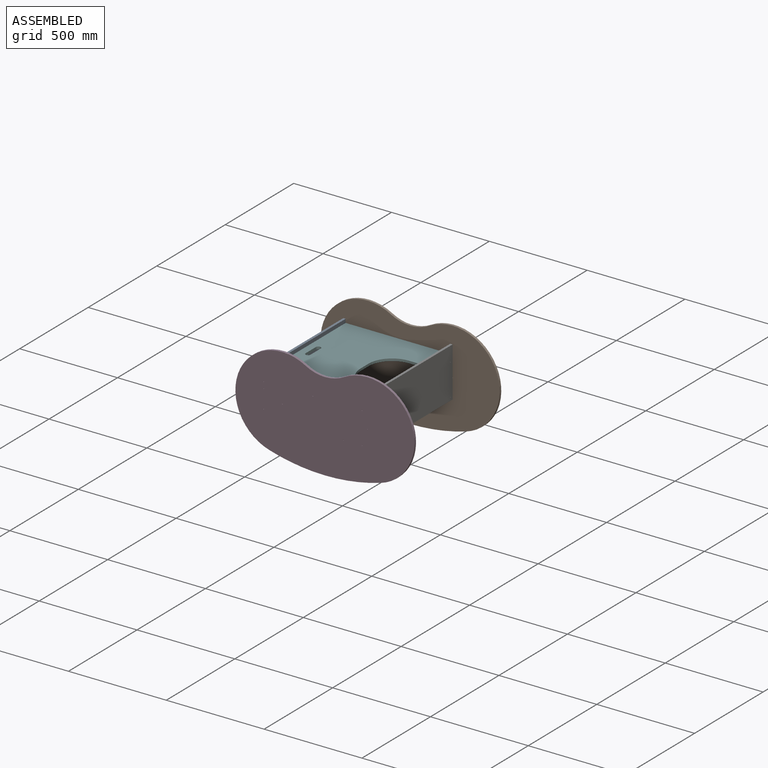
[diagram: assembled view]
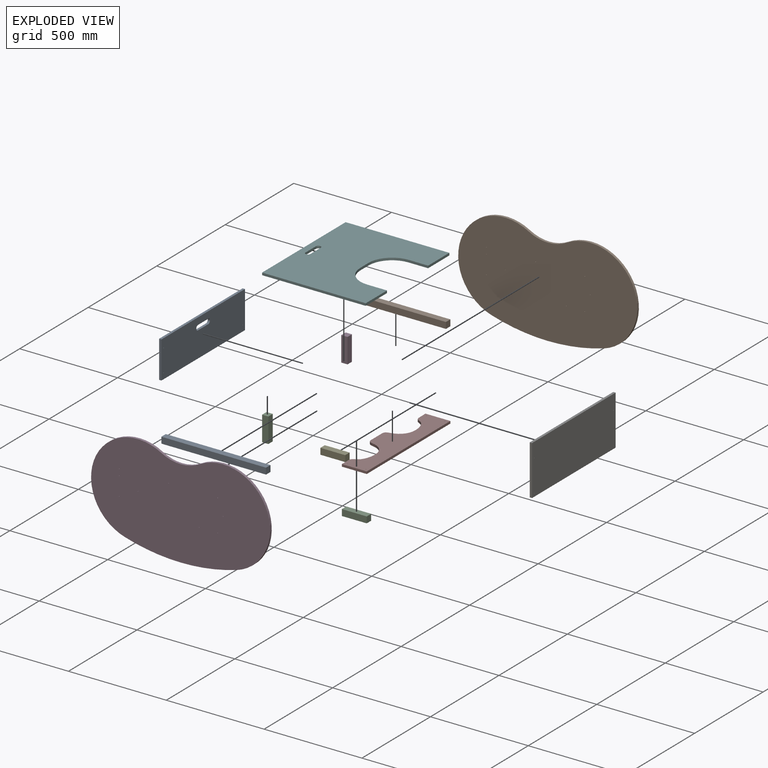
[diagram: exploded view]
GUIDED TOUR — MATED ASSEMBLY (Onshape document 1c4da140332665b09f8e28de, AutoMate assembly 1c4da140332665b09f8e28de_31da0ef248eccbd17ac45f32_f34d7055b889e189b3b1da10_default)

This assembly has 12 components, labeled P0..P11 below (a component is one placed occurrence of a part; the same part can appear more than once), held together by 11 mates. A mate is a constraint between two components; its type names the relative motion it leaves free:
  FASTENED — locks the two components together rigidly (no relative motion).
Axis/direction vectors are unit vectors and 'through' points are millimeter coordinates, both in the assembly's world frame.

MATES
  1. FASTENED "Fastened 5": P7 <-> P4, direction (0.000, 0.000, -1.000) through (205.50, -6.00, -68.00) mm
  2. FASTENED "Fastened 4": P8 <-> P11, direction (1.000, 0.000, 0.000) through (-329.50, -6.00, -64.00) mm
  3. FASTENED "Fastened 8": P0 <-> P5, direction (0.000, 0.000, 1.000) through (-329.50, -616.00, 95.00) mm
  4. FASTENED "Fastened 9": P10 <-> P7, direction (0.000, 0.000, 1.000) through (205.50, -616.00, -68.00) mm
  5. FASTENED "Fastened 3": P11 <-> P1, direction (1.000, 0.000, 0.000) through (-329.50, -6.00, 63.00) mm
  6. FASTENED "Fastened 7": P5 <-> P1, direction (0.000, 0.000, -1.000) through (-329.50, -6.00, 95.00) mm
  7. FASTENED "Fastened 6": P6 <-> P4, direction (-1.000, 0.000, 0.000) through (205.50, -6.00, -100.00) mm
  8. FASTENED "Fastened 2": P9 <-> P1, direction (0.000, -1.000, 0.000) through (205.50, -6.00, 63.00) mm
  9. FASTENED "Fastened 11": P10 <-> P3, direction (0.000, -1.000, 0.000) through (205.50, -616.00, -100.00) mm
  10. FASTENED "Fastened 1": P4 <-> P9, direction (0.000, 1.000, 0.000) through (205.50, -6.00, -100.00) mm
  11. FASTENED "Fastened 10": P0 <-> P2, direction (0.000, 0.000, -1.000) through (-329.50, -616.00, 63.00) mm

ASSEMBLY ORDER
  1. P11 — the base component [order verified]
  2. P2 [order verified]
  3. P1 [order verified]
  4. P0 [order verified]
  5. P7 [order verified]
  6. P10 [order verified]
  7. P4 [order verified]
  8. P5 [order verified]
  9. P6 [order verified]
  10. P8 [order verified]
  11. P9 [order verified]
  12. P3 [order verified]
Order-tag legend:
  [order verified] — this step's position reverses a verified removal order: the component was checked to insert without passing through the ones already placed.

Of the 12 components, 12 carry the full construction recipe — the FeatureScript program that regenerates the part's solid from scratch; the rest are supplied as boundary geometry only.
Each toured component is shown spotlighted twice — in the assembled view, then in the exploded view, where a leader line traces a displaced component back to its assembled socket (saturated green if recipe-attached, orange if geometry-only; every other component desaturated gray) — followed by its recipe or geometry summary and the mates that hold it.
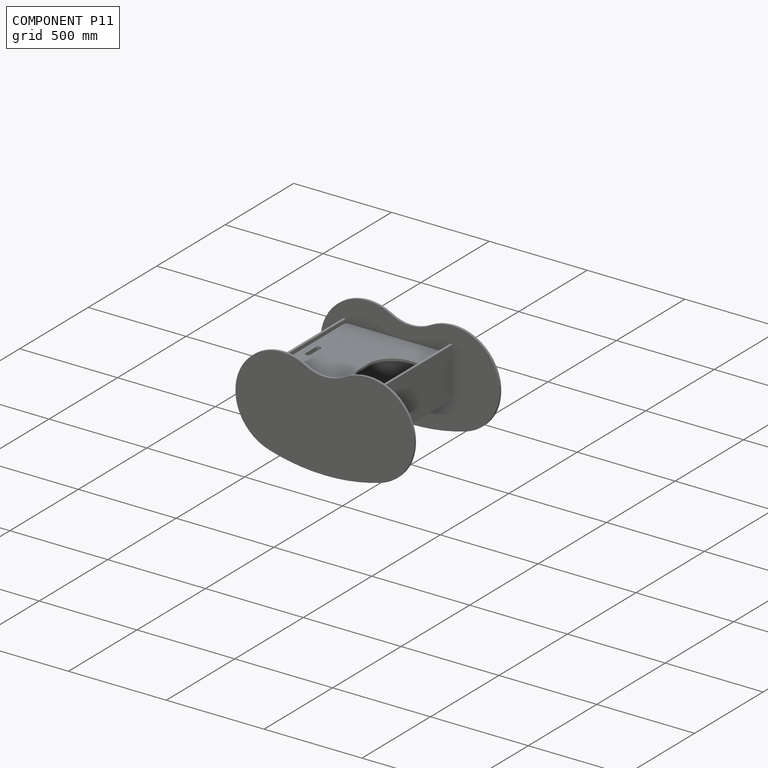
[diagram: component P11 — assembled]
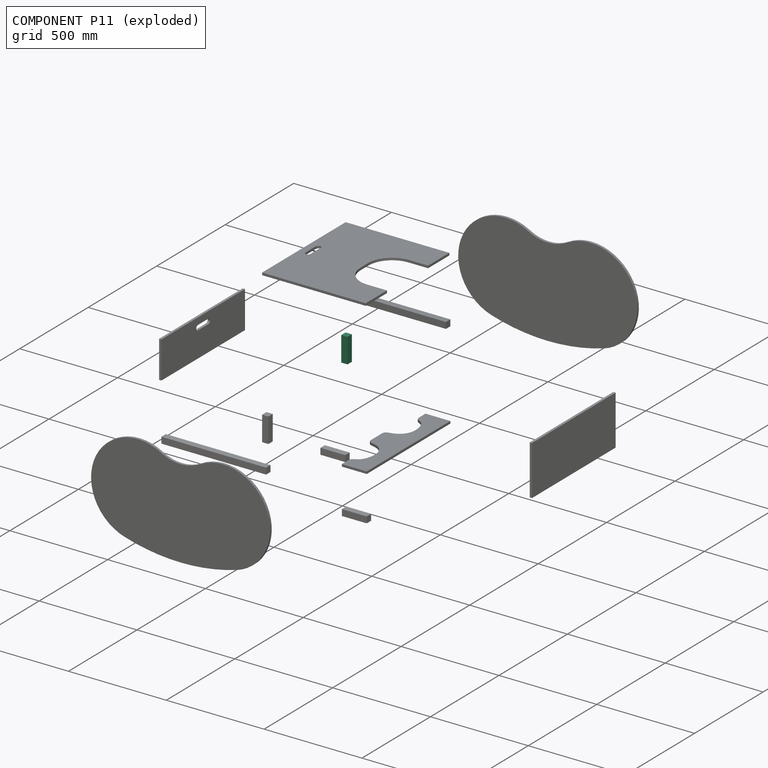
[diagram: component P11 — exploded]
COMPONENT P11 — same part as P2 (CADFS 00739949); its construction recipe is shown at P2.
Held by: FASTENED mate "Fastened 4" to P8; FASTENED mate "Fastened 3" to P1.
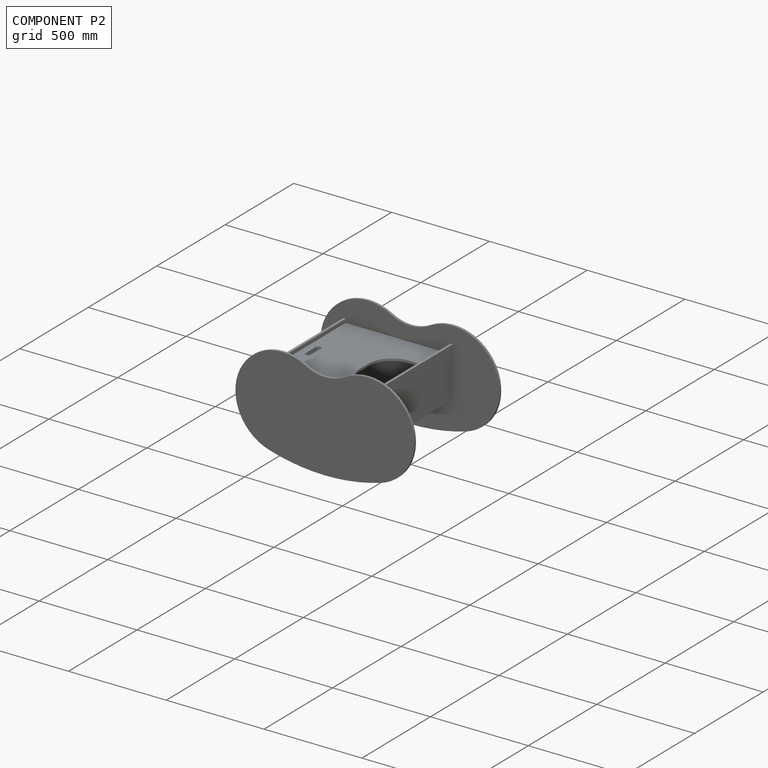
[diagram: component P2 — assembled]
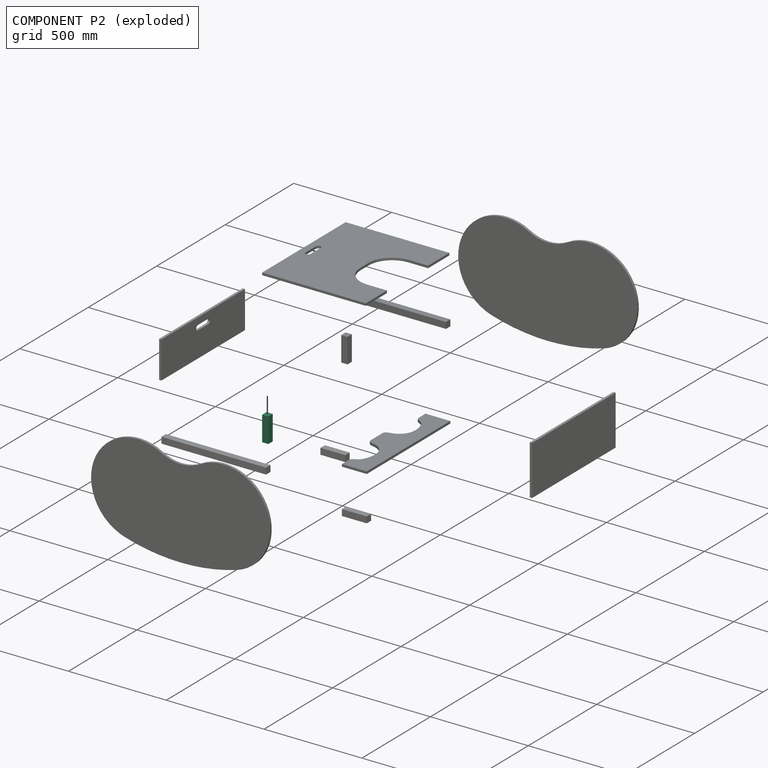
[diagram: component P2 — exploded]
COMPONENT P2 — recipe-attached (CADFS 00739949, mesh-verified: the recipe's output STEP matches this component's geometry to below the mesh-comparison resolution (tessellation chordal tolerance ~0.202 mm)).
Held by: FASTENED mate "Fastened 10" to P0.
Construction recipe (FeatureScript — the CAD program that rebuilds this solid; sketch coordinates are in the units given by the * unit suffixes, e.g. mm):

FeatureScript 1540;
import(path : "onshape/std/geometry.fs", version : "1540.0");
import(path : "onshape/std/common.fs", version : "1540.0");
const mm = millimeter;
const VERTEX = EntityType.VERTEX;
const EDGE = EntityType.EDGE;
const FACE = EntityType.FACE;
const BODY = EntityType.BODY;
function v(x, y){return vector(x, y);}
function OD(order){return orderDisambiguation(order);}
function OSD(set){return originalSetDisambiguation(set);}
function TD(topology){return topologyDisambiguation(topology);}
function TDD(query){return trueDependencyDisambiguation(query);}
function sQuery(a, b, c) {return sketchEntityQuery(a, b, c);}

annotation { "Feature Type Name" : "Feature", "Feature Type Description" : "" }
export const myFeature = defineFeature(function(context is Context, id is Id, definition is map)
    precondition{}
    {
        {
            var Q0;
            Q0=qCreatedBy(makeId("Front.planeOp"),FACE);
            var sketch = newSketch(context, id + "F0", { "sketchPlane" : qUnion([Q0])});
            skLineSegment(sketch, "E0.bottom", {"start": v(16, -16) * mm, "end": v(-16, -16) * mm});
            skLineSegment(sketch, "E0.top", {"start": v(16, 16) * mm, "end": v(-16, 16) * mm});
            skLineSegment(sketch, "E0.left", {"start": v(16, -16) * mm, "end": v(16, 16) * mm});
            skLineSegment(sketch, "E0.right", {"start": v(-16, -16) * mm, "end": v(-16, 16) * mm});
            skPoint(sketch, "E0.middle", {"position": v(0, 0) * mm});
            skSolve(sketch);
        }
        {
            var Q0;
            Q0=makeQuery(id+"F0.imprint","IMPRINT",FACE,{"disambiguationData":[TD([[makeQuery(id+"F0.imprint","IMPRINT",EDGE,{"derivedFrom":sQuery(id+"F0.wireOp",EDGE,"E0.bottom")}),-1.0]])]});
            extrude(context, id + "F1", {"entities" : qUnion([Q0]), "oppositeDirection" : true, "depth" : 127 * mm, "offsetDistance" : 25 * mm, "symmetric" : true});
        }
    });
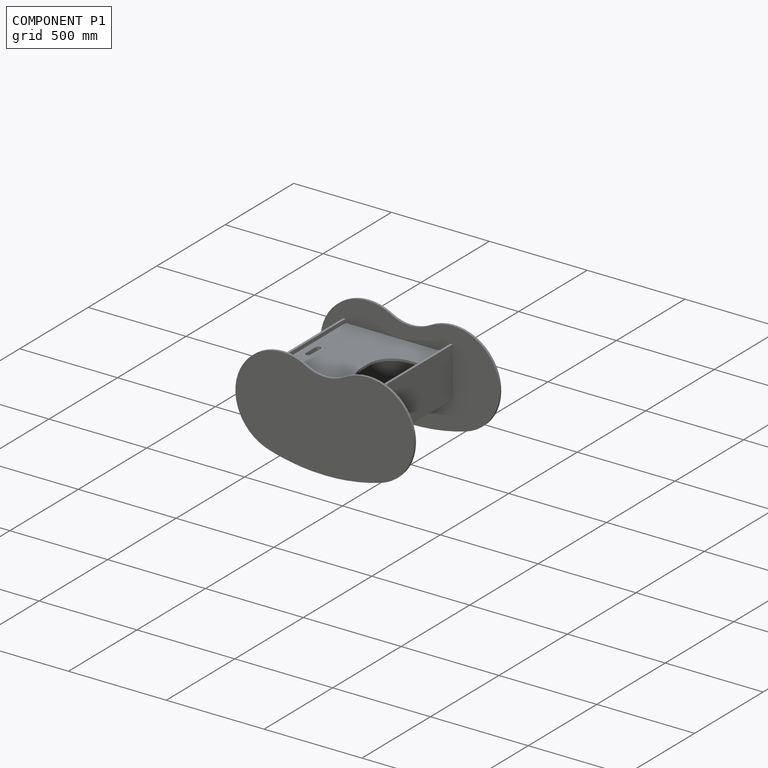
[diagram: component P1 — assembled]
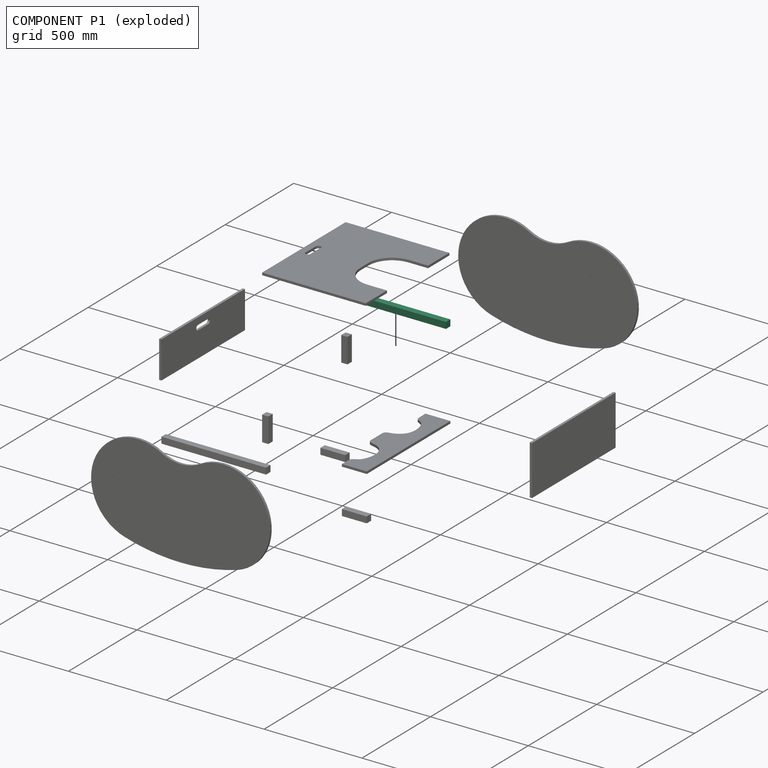
[diagram: component P1 — exploded]
COMPONENT P1 — same part as P0 (CADFS 00739947); its construction recipe is shown at P0.
Held by: FASTENED mate "Fastened 3" to P11; FASTENED mate "Fastened 7" to P5; FASTENED mate "Fastened 2" to P9.
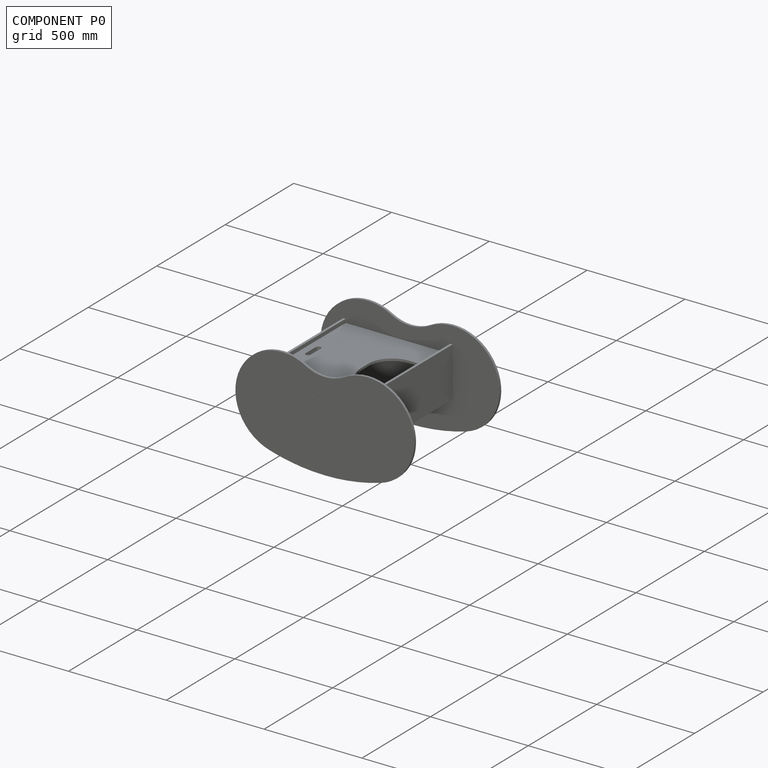
[diagram: component P0 — assembled]
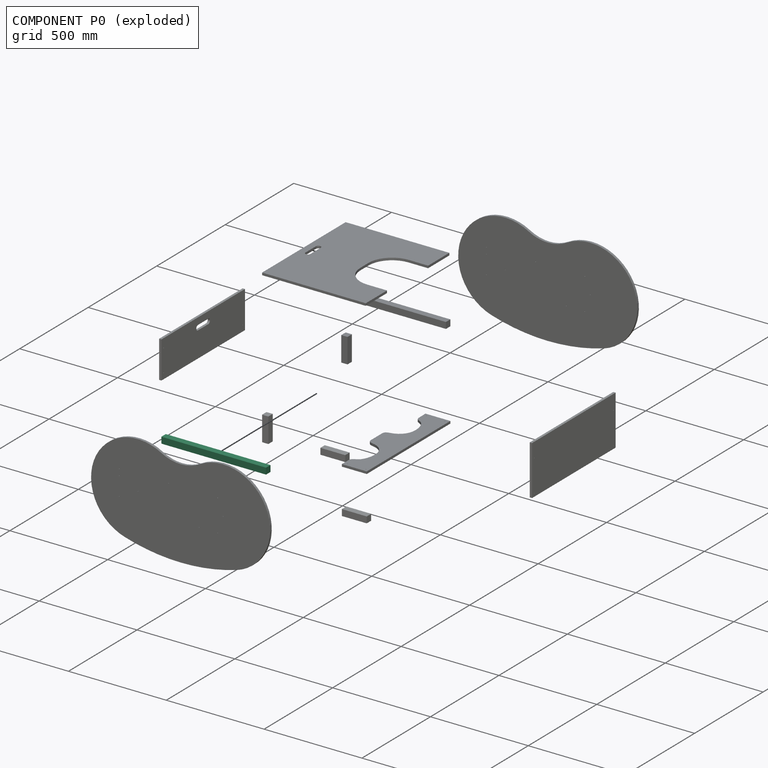
[diagram: component P0 — exploded]
COMPONENT P0 — recipe-attached (CADFS 00739947, mesh-verified: the recipe's output STEP matches this component's geometry to below the mesh-comparison resolution (tessellation chordal tolerance ~0.805 mm)).
Held by: FASTENED mate "Fastened 8" to P5; FASTENED mate "Fastened 10" to P2.
Construction recipe (FeatureScript — the CAD program that rebuilds this solid; sketch coordinates are in the units given by the * unit suffixes, e.g. mm):

FeatureScript 1540;
import(path : "onshape/std/geometry.fs", version : "1540.0");
import(path : "onshape/std/common.fs", version : "1540.0");
const mm = millimeter;
const VERTEX = EntityType.VERTEX;
const EDGE = EntityType.EDGE;
const FACE = EntityType.FACE;
const BODY = EntityType.BODY;
function v(x, y){return vector(x, y);}
function OD(order){return orderDisambiguation(order);}
function OSD(set){return originalSetDisambiguation(set);}
function TD(topology){return topologyDisambiguation(topology);}
function TDD(query){return trueDependencyDisambiguation(query);}
function sQuery(a, b, c) {return sketchEntityQuery(a, b, c);}

annotation { "Feature Type Name" : "Feature", "Feature Type Description" : "" }
export const myFeature = defineFeature(function(context is Context, id is Id, definition is map)
    precondition{}
    {
        {
            var Q0;
            Q0=qCreatedBy(makeId("Front.planeOp"),FACE);
            var sketch = newSketch(context, id + "F0", { "sketchPlane" : qUnion([Q0])});
            skLineSegment(sketch, "E0.bottom", {"start": v(16, -16) * mm, "end": v(-16, -16) * mm});
            skLineSegment(sketch, "E0.top", {"start": v(16, 16) * mm, "end": v(-16, 16) * mm});
            skLineSegment(sketch, "E0.left", {"start": v(16, -16) * mm, "end": v(16, 16) * mm});
            skLineSegment(sketch, "E0.right", {"start": v(-16, -16) * mm, "end": v(-16, 16) * mm});
            skPoint(sketch, "E0.middle", {"position": v(0, 0) * mm});
            skSolve(sketch);
        }
        {
            var Q0;
            Q0=makeQuery(id+"F0.imprint","IMPRINT",FACE,{"disambiguationData":[TD([[makeQuery(id+"F0.imprint","IMPRINT",EDGE,{"derivedFrom":sQuery(id+"F0.wireOp",EDGE,"E0.bottom")}),-1.0]])]});
            extrude(context, id + "F1", {"entities" : qUnion([Q0]), "oppositeDirection" : true, "depth" : 535 * mm, "offsetDistance" : 25 * mm, "symmetric" : true});
        }
    });
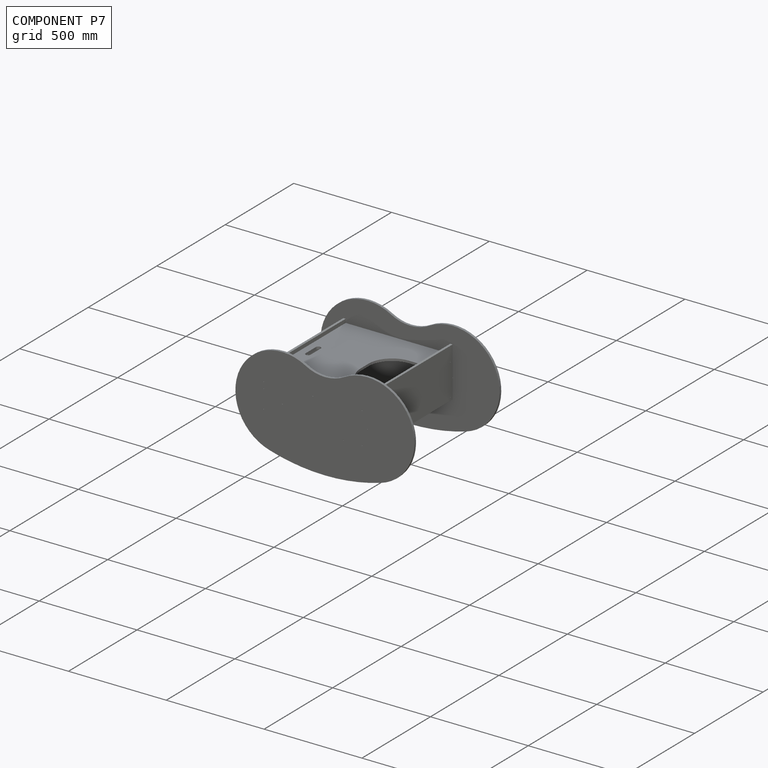
[diagram: component P7 — assembled]
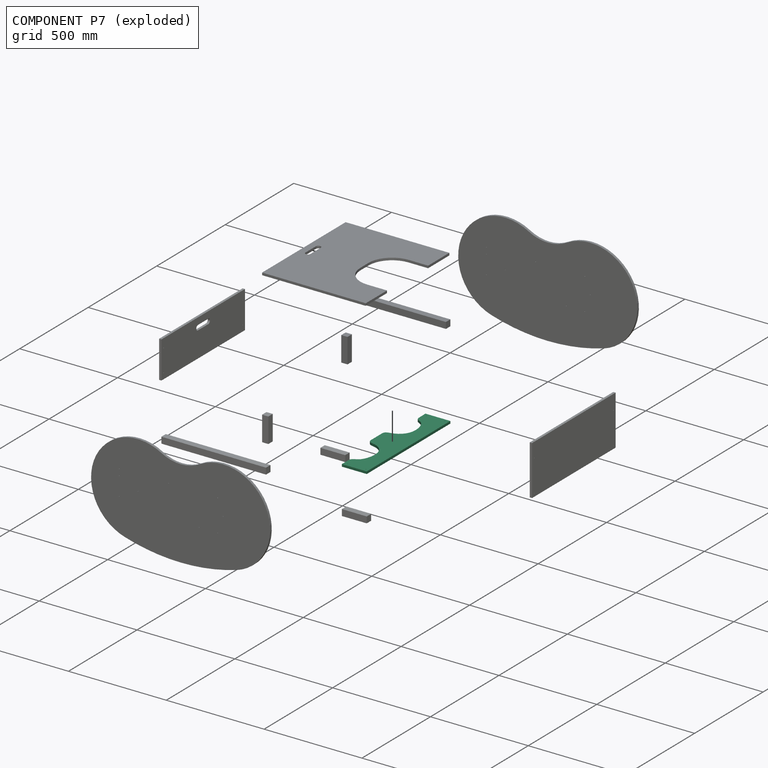
[diagram: component P7 — exploded]
COMPONENT P7 — recipe-attached (CADFS 00739952, mesh-verified: the recipe's output STEP matches this component's geometry to below the mesh-comparison resolution (tessellation chordal tolerance ~0.948 mm)).
Held by: FASTENED mate "Fastened 5" to P4; FASTENED mate "Fastened 9" to P10.
Construction recipe (FeatureScript — the CAD program that rebuilds this solid; sketch coordinates are in the units given by the * unit suffixes, e.g. mm):

FeatureScript 1540;
import(path : "onshape/std/geometry.fs", version : "1540.0");
import(path : "onshape/std/common.fs", version : "1540.0");
const mm = millimeter;
const VERTEX = EntityType.VERTEX;
const EDGE = EntityType.EDGE;
const FACE = EntityType.FACE;
const BODY = EntityType.BODY;
function v(x, y){return vector(x, y);}
function OD(order){return orderDisambiguation(order);}
function OSD(set){return originalSetDisambiguation(set);}
function TD(topology){return topologyDisambiguation(topology);}
function TDD(query){return trueDependencyDisambiguation(query);}
function sQuery(a, b, c) {return sketchEntityQuery(a, b, c);}

annotation { "Feature Type Name" : "Feature", "Feature Type Description" : "" }
export const myFeature = defineFeature(function(context is Context, id is Id, definition is map)
    precondition{}
    {
        {
            var Q0;
            Q0=qCreatedBy(makeId("Top.planeOp"),FACE);
            var sketch = newSketch(context, id + "F0", { "sketchPlane" : qUnion([Q0])});
            skLineSegment(sketch, "E0.bottom", {"start": v(-305, 0) * mm, "end": v(305, 0) * mm});
            skLineSegment(sketch, "E0.top", {"start": v(-40, 164) * mm, "end": v(40, 164) * mm});
            skLineSegment(sketch, "E0.left", {"start": v(-305, 0) * mm, "end": v(-305, 127) * mm});
            skLineSegment(sketch, "E0.right", {"start": v(305, 0) * mm, "end": v(305, 127) * mm});
            skFitSpline(sketch, "E1", {"points": [v(-40, 164) * mm, v(-67.52, 124) * mm, v(-123.52, 70) * mm, v(-220.2, 90.1) * mm, v(-240.73, 121.15) * mm, v(-305, 127) * mm], "startDerivative": vector(-394.76, 0) * mm, "endDerivative": vector(-576.23, 21.18) * mm});
            skFitSpline(sketch, "E2.MirrorCS", {"points": [v(40, 164) * mm, v(67.52, 124) * mm, v(123.52, 70) * mm, v(220.2, 90.1) * mm, v(240.73, 121.15) * mm, v(305, 127) * mm], "startDerivative": vector(394.76, 0) * mm, "endDerivative": vector(576.23, 21.18) * mm});
            skLineSegment(sketch, "E3", {"start": v(-289, 126.67) * mm, "end": v(-289, 0) * mm, "construction": true});
            skCircle(sketch, "E4", {"center": v(-289, 16) * mm, "radius": 1.5 * mm});
            skCircle(sketch, "E5", {"center": v(-289, 111) * mm, "radius": 1.5 * mm});
            skCircle(sketch, "E6.MirrorC", {"center": v(289, 16) * mm, "radius": 1.5 * mm});
            skCircle(sketch, "E7.MirrorC", {"center": v(289, 111) * mm, "radius": 1.5 * mm});
            skLineSegment(sketch, "E8.MirrorCS", {"start": v(289, 126.67) * mm, "end": v(289, 0) * mm, "construction": true});
            skSolve(sketch);
        }
        {
            var Q0;
            Q0=makeQuery(id+"F0.imprint","IMPRINT",FACE,{"disambiguationData":[TD([[makeQuery(id+"F0.imprint","IMPRINT",EDGE,{"derivedFrom":sQuery(id+"F0.wireOp",EDGE,"E0.bottom")}),1.0]])]});
            extrude(context, id + "F1", {"entities" : qUnion([Q0]), "depth" : 12 * mm, "offsetDistance" : 25 * mm});
        }
    });
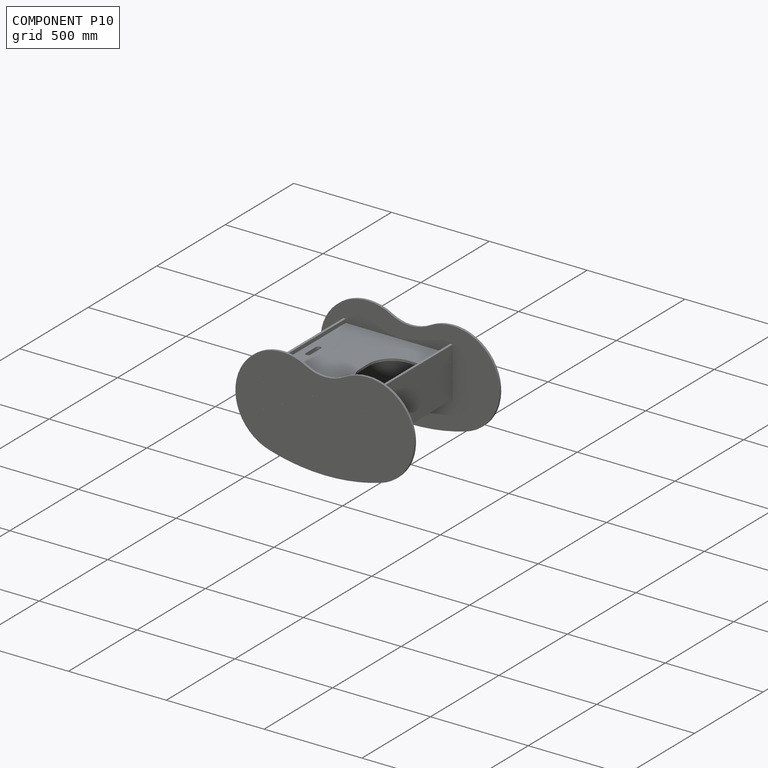
[diagram: component P10 — assembled]
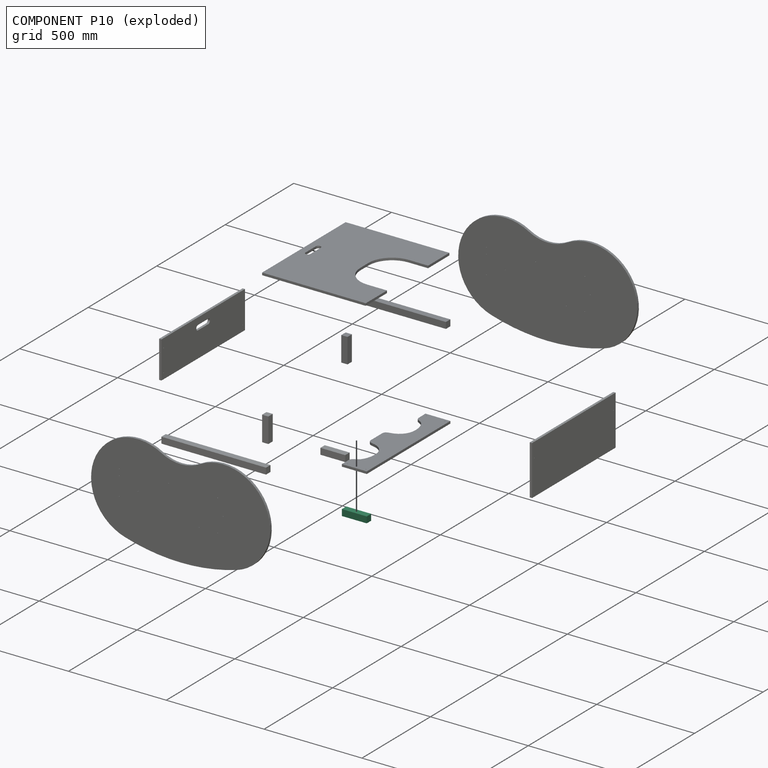
[diagram: component P10 — exploded]
COMPONENT P10 — same part as P2 (CADFS 00739949); its construction recipe is shown at P2.
Held by: FASTENED mate "Fastened 9" to P7; FASTENED mate "Fastened 11" to P3.
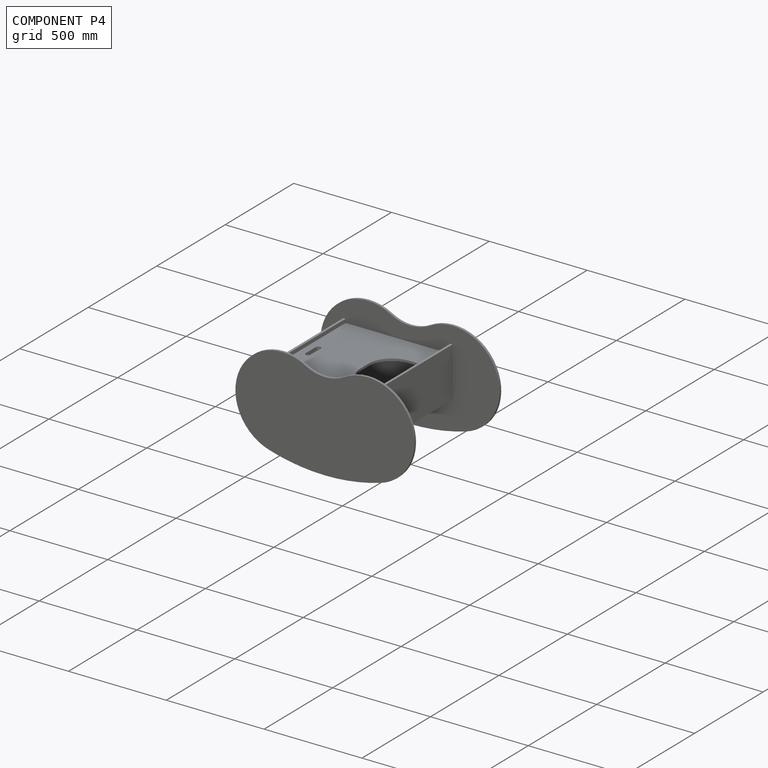
[diagram: component P4 — assembled]
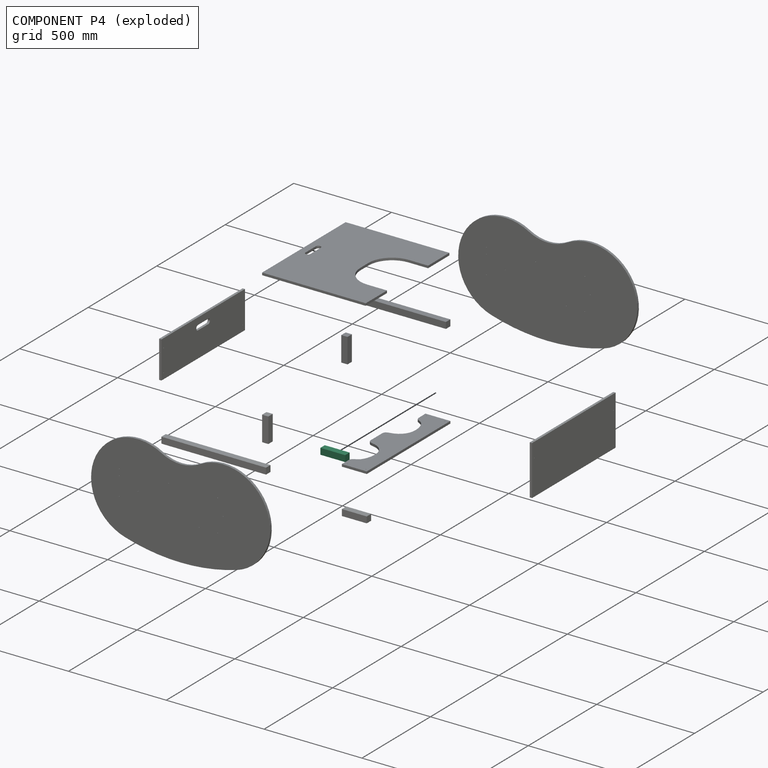
[diagram: component P4 — exploded]
COMPONENT P4 — same part as P2 (CADFS 00739949); its construction recipe is shown at P2.
Held by: FASTENED mate "Fastened 5" to P7; FASTENED mate "Fastened 6" to P6; FASTENED mate "Fastened 1" to P9.
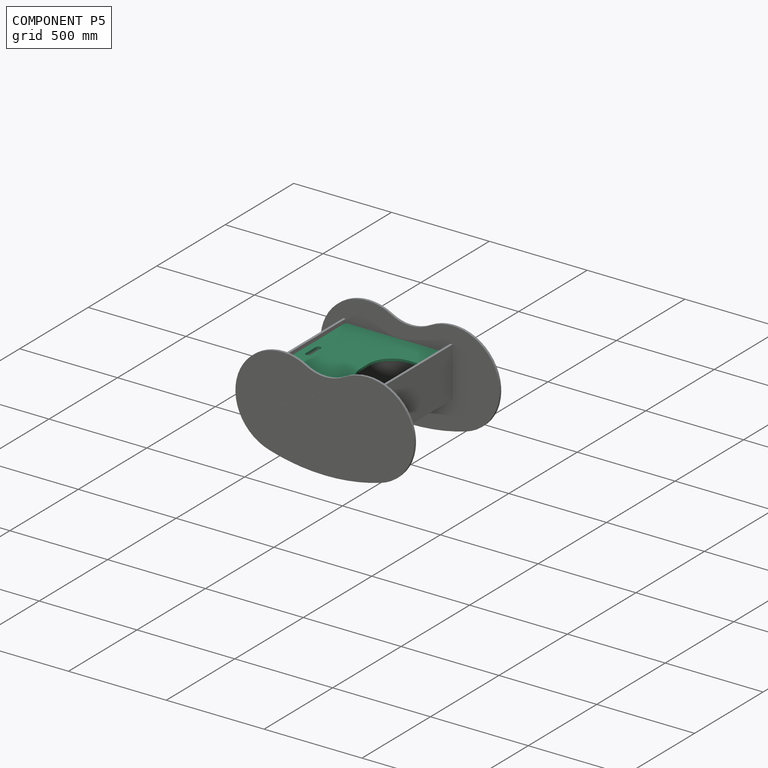
[diagram: component P5 — assembled]
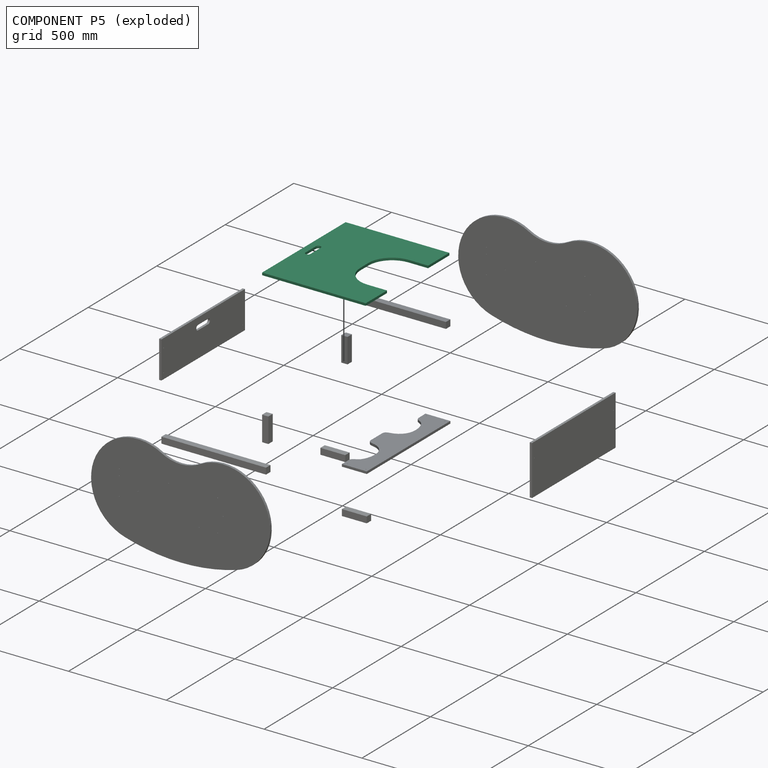
[diagram: component P5 — exploded]
COMPONENT P5 — recipe-attached (CADFS 00739948, mesh-verified: the recipe's output STEP matches this component's geometry to below the mesh-comparison resolution (tessellation chordal tolerance ~1.21 mm)).
Held by: FASTENED mate "Fastened 8" to P0; FASTENED mate "Fastened 7" to P1.
Construction recipe (FeatureScript — the CAD program that rebuilds this solid; sketch coordinates are in the units given by the * unit suffixes, e.g. mm):

FeatureScript 1540;
import(path : "onshape/std/geometry.fs", version : "1540.0");
import(path : "onshape/std/common.fs", version : "1540.0");
const mm = millimeter;
const VERTEX = EntityType.VERTEX;
const EDGE = EntityType.EDGE;
const FACE = EntityType.FACE;
const BODY = EntityType.BODY;
function v(x, y){return vector(x, y);}
function OD(order){return orderDisambiguation(order);}
function OSD(set){return originalSetDisambiguation(set);}
function TD(topology){return topologyDisambiguation(topology);}
function TDD(query){return trueDependencyDisambiguation(query);}
function sQuery(a, b, c) {return sketchEntityQuery(a, b, c);}

annotation { "Feature Type Name" : "Feature", "Feature Type Description" : "" }
export const myFeature = defineFeature(function(context is Context, id is Id, definition is map)
    precondition{}
    {
        {
            var Q0;
            Q0=qCreatedBy(makeId("Front.planeOp"),FACE);
            var sketch = newSketch(context, id + "F0", { "sketchPlane" : qUnion([Q0])});
            skLineSegment(sketch, "E0.bottom", {"start": v(305, -256.27) * mm, "end": v(150, -256.27) * mm});
            skLineSegment(sketch, "E0.top", {"start": v(305, 273.73) * mm, "end": v(-305, 273.73) * mm});
            skLineSegment(sketch, "E0.left", {"start": v(305, -256.27) * mm, "end": v(305, 273.73) * mm});
            skLineSegment(sketch, "E0.right", {"start": v(-305, -256.27) * mm, "end": v(-305, 273.73) * mm});
            skPoint(sketch, "E0.middle", {"position": v(0, 8.73) * mm});
            skLineSegment(sketch, "E1.bottom", {"start": v(30, -36.27) * mm, "end": v(-30, -36.27) * mm});
            skLineSegment(sketch, "E1.left", {"start": v(150, -156.27) * mm, "end": v(150, -256.27) * mm});
            skLineSegment(sketch, "E1.right", {"start": v(-150, -156.27) * mm, "end": v(-150, -256.27) * mm});
            skPoint(sketch, "E1.middle", {"position": v(0, -256.27) * mm});
            skPoint(sketch, "E1.top.end.orphan", {"position": v(-150, -476.27) * mm});
            skPoint(sketch, "E2.orphan", {"position": v(150, -476.27) * mm});
            skPoint(sketch, "E3.visualSharp", {"position": v(-150, -36.27) * mm});
            skArc(sketch, "E3.filletArc", {"start": v(-30, -36.27) * mm, "mid": v(-114.85, -71.42) * mm, "end": v(-150, -156.27) * mm});
            skPoint(sketch, "E4.visualSharp", {"position": v(150, -36.27) * mm});
            skArc(sketch, "E4.filletArc", {"start": v(150, -156.27) * mm, "mid": v(114.85, -71.42) * mm, "end": v(30, -36.27) * mm});
            skLineSegment(sketch, "E5.trimOffspring", {"start": v(-150, -256.27) * mm, "end": v(-305, -256.27) * mm});
            skLineSegment(sketch, "E6.bottom", {"start": v(37.5, 238.73) * mm, "end": v(-37.5, 238.73) * mm});
            skLineSegment(sketch, "E6.top", {"start": v(37.5, 213.73) * mm, "end": v(-37.5, 213.73) * mm});
            skPoint(sketch, "E6.middle", {"position": v(0, 226.23) * mm});
            skArc(sketch, "E7", {"start": v(-37.5, 238.73) * mm, "mid": v(-50, 226.23) * mm, "end": v(-37.5, 213.73) * mm});
            skArc(sketch, "E8", {"start": v(37.5, 213.73) * mm, "mid": v(50, 226.23) * mm, "end": v(37.5, 238.73) * mm});
            skSolve(sketch);
        }
        {
            var Q0;
            Q0 = qSketchRegion(id + "F0", true);
            extrude(context, id + "F1", {"entities" : qUnion([Q0]), "depth" : 12 * mm, "offsetDistance" : 25 * mm, "symmetric" : true});
        }
    });
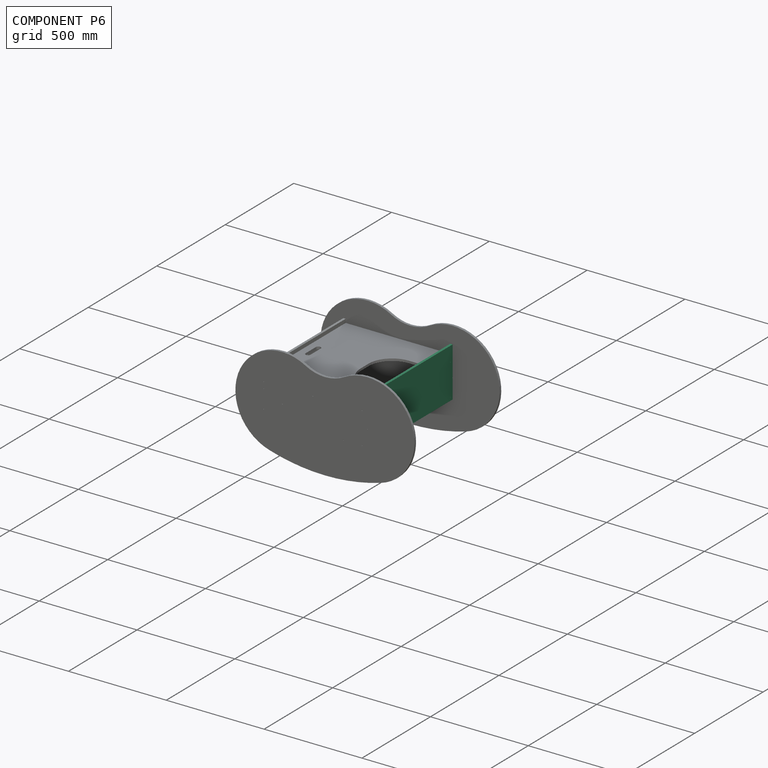
[diagram: component P6 — assembled]
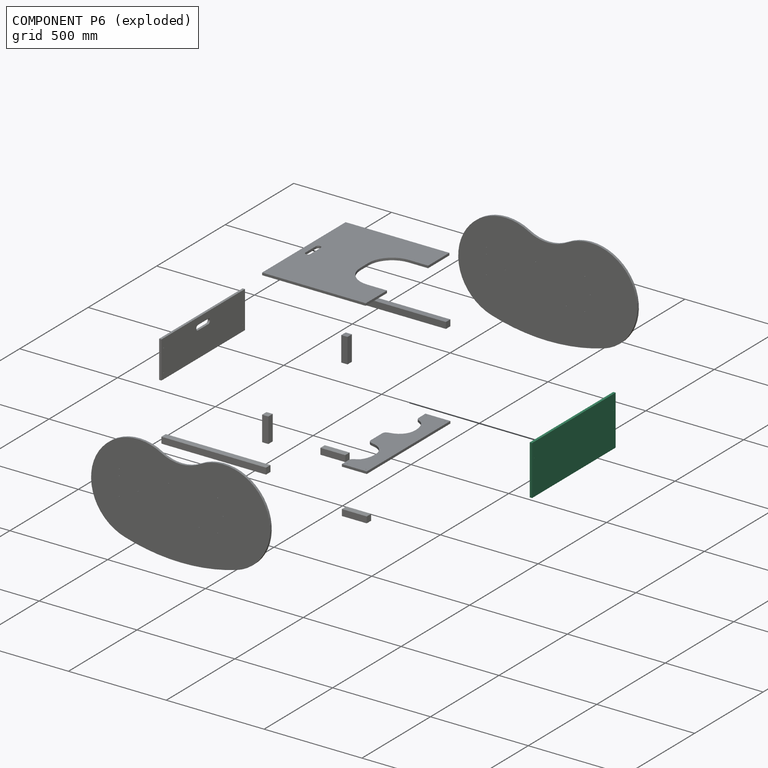
[diagram: component P6 — exploded]
COMPONENT P6 — recipe-attached (CADFS 00739951, mesh-verified: the recipe's output STEP matches this component's geometry to below the mesh-comparison resolution (tessellation chordal tolerance ~0.991 mm)).
Held by: FASTENED mate "Fastened 6" to P4.
Construction recipe (FeatureScript — the CAD program that rebuilds this solid; sketch coordinates are in the units given by the * unit suffixes, e.g. mm):

FeatureScript 1540;
import(path : "onshape/std/geometry.fs", version : "1540.0");
import(path : "onshape/std/common.fs", version : "1540.0");
const mm = millimeter;
const VERTEX = EntityType.VERTEX;
const EDGE = EntityType.EDGE;
const FACE = EntityType.FACE;
const BODY = EntityType.BODY;
function v(x, y){return vector(x, y);}
function OD(order){return orderDisambiguation(order);}
function OSD(set){return originalSetDisambiguation(set);}
function TD(topology){return topologyDisambiguation(topology);}
function TDD(query){return trueDependencyDisambiguation(query);}
function sQuery(a, b, c) {return sketchEntityQuery(a, b, c);}

annotation { "Feature Type Name" : "Feature", "Feature Type Description" : "" }
export const myFeature = defineFeature(function(context is Context, id is Id, definition is map)
    precondition{}
    {
        {
            var Q0;
            Q0=qCreatedBy(makeId("Front.planeOp"),FACE);
            var sketch = newSketch(context, id + "F0", { "sketchPlane" : qUnion([Q0])});
            skLineSegment(sketch, "E0.bottom", {"start": v(305, -127) * mm, "end": v(-305, -127) * mm});
            skLineSegment(sketch, "E0.top", {"start": v(305, 127) * mm, "end": v(-305, 127) * mm});
            skLineSegment(sketch, "E0.left", {"start": v(305, -127) * mm, "end": v(305, 127) * mm});
            skLineSegment(sketch, "E0.right", {"start": v(-305, -127) * mm, "end": v(-305, 127) * mm});
            skPoint(sketch, "E0.middle", {"position": v(0, 0) * mm});
            skLineSegment(sketch, "E1", {"start": v(-289, 127) * mm, "end": v(-289, -127) * mm, "construction": true});
            skCircle(sketch, "E2", {"center": v(-289, 52) * mm, "radius": 1.5 * mm});
            skCircle(sketch, "E3", {"center": v(-289, -111) * mm, "radius": 1.5 * mm});
            skCircle(sketch, "E4.MirrorC", {"center": v(289, -111) * mm, "radius": 1.5 * mm});
            skCircle(sketch, "E5.MirrorC", {"center": v(289, 52) * mm, "radius": 1.5 * mm});
            skLineSegment(sketch, "E6.MirrorCS", {"start": v(289, 127) * mm, "end": v(289, -127) * mm, "construction": true});
            skSolve(sketch);
        }
        {
            var Q0;
            Q0=makeQuery(id+"F0.imprint","IMPRINT",FACE,{"disambiguationData":[TD([[makeQuery(id+"F0.imprint","IMPRINT",EDGE,{"derivedFrom":sQuery(id+"F0.wireOp",EDGE,"E0.bottom")}),-1.0]])]});
            extrude(context, id + "F1", {"entities" : qUnion([Q0]), "depth" : 12 * mm, "offsetDistance" : 25 * mm, "symmetric" : true});
        }
    });
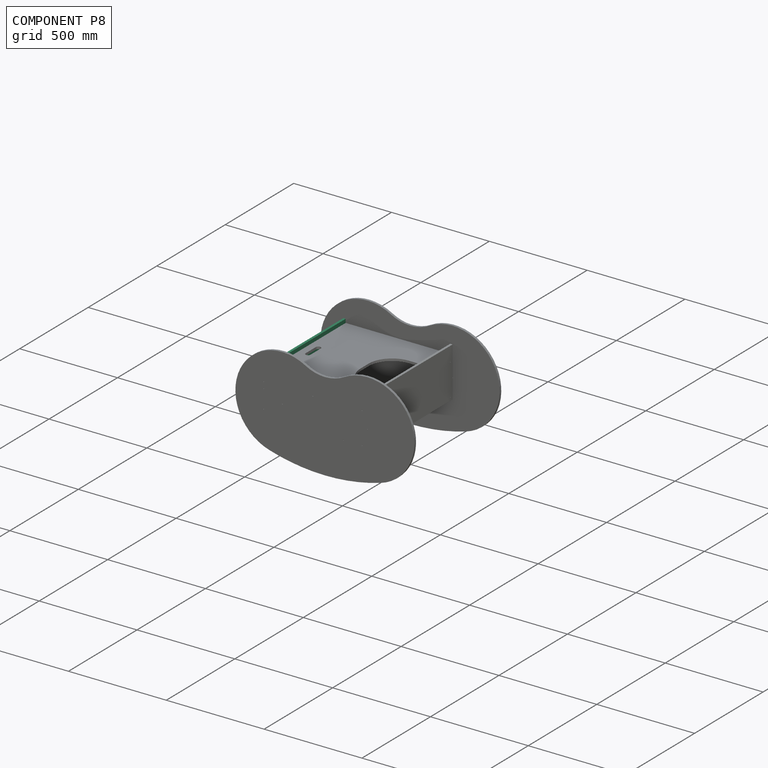
[diagram: component P8 — assembled]
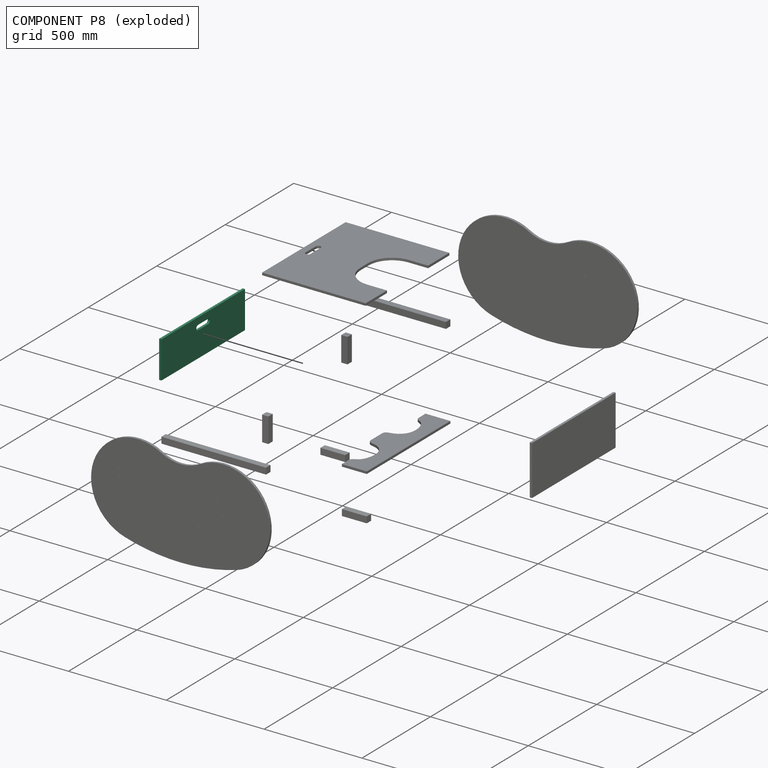
[diagram: component P8 — exploded]
COMPONENT P8 — recipe-attached (CADFS 00739950, mesh-verified: the recipe's output STEP matches this component's geometry to below the mesh-comparison resolution (tessellation chordal tolerance ~0.959 mm)).
Held by: FASTENED mate "Fastened 4" to P11.
Construction recipe (FeatureScript — the CAD program that rebuilds this solid; sketch coordinates are in the units given by the * unit suffixes, e.g. mm):

FeatureScript 1540;
import(path : "onshape/std/geometry.fs", version : "1540.0");
import(path : "onshape/std/common.fs", version : "1540.0");
const mm = millimeter;
const VERTEX = EntityType.VERTEX;
const EDGE = EntityType.EDGE;
const FACE = EntityType.FACE;
const BODY = EntityType.BODY;
function v(x, y){return vector(x, y);}
function OD(order){return orderDisambiguation(order);}
function OSD(set){return originalSetDisambiguation(set);}
function TD(topology){return topologyDisambiguation(topology);}
function TDD(query){return trueDependencyDisambiguation(query);}
function sQuery(a, b, c) {return sketchEntityQuery(a, b, c);}

annotation { "Feature Type Name" : "Feature", "Feature Type Description" : "" }
export const myFeature = defineFeature(function(context is Context, id is Id, definition is map)
    precondition{}
    {
        {
            var Q0;
            Q0=qCreatedBy(makeId("Front.planeOp"),FACE);
            var sketch = newSketch(context, id + "F0", { "sketchPlane" : qUnion([Q0])});
            skLineSegment(sketch, "E0.bottom", {"start": v(305, -95) * mm, "end": v(-305, -95) * mm});
            skLineSegment(sketch, "E0.top", {"start": v(305, 95) * mm, "end": v(-305, 95) * mm});
            skLineSegment(sketch, "E0.left", {"start": v(305, -95) * mm, "end": v(305, 95) * mm});
            skLineSegment(sketch, "E0.right", {"start": v(-305, -95) * mm, "end": v(-305, 95) * mm});
            skPoint(sketch, "E0.middle", {"position": v(0, 0) * mm});
            skLineSegment(sketch, "E1.bottom", {"start": v(37.75, 35) * mm, "end": v(-37.25, 35) * mm});
            skLineSegment(sketch, "E1.top", {"start": v(37.75, 60) * mm, "end": v(-37.25, 60) * mm});
            skPoint(sketch, "E1.middle", {"position": v(0, 47.5) * mm});
            skArc(sketch, "E2", {"start": v(-37.25, 60) * mm, "mid": v(-49.75, 47.5) * mm, "end": v(-37.25, 35) * mm});
            skArc(sketch, "E3", {"start": v(37.75, 35) * mm, "mid": v(50.25, 47.5) * mm, "end": v(37.75, 60) * mm});
            skPoint(sketch, "E4.orphan", {"position": v(-49.42, 60) * mm});
            skPoint(sketch, "E5.orphan", {"position": v(-49.86, 35) * mm});
            skPoint(sketch, "E6.orphan", {"position": v(49.86, 60) * mm});
            skPoint(sketch, "E7.orphan", {"position": v(49.42, 35) * mm});
            skLineSegment(sketch, "E8", {"start": v(-289, 95) * mm, "end": v(-289, -95) * mm, "construction": true});
            skCircle(sketch, "E9", {"center": v(-289, 50) * mm, "radius": 1.5 * mm});
            skCircle(sketch, "E10", {"center": v(-289, -65) * mm, "radius": 1.5 * mm});
            skCircle(sketch, "E11.MirrorC", {"center": v(289, -65) * mm, "radius": 1.5 * mm});
            skCircle(sketch, "E12.MirrorC", {"center": v(289, 50) * mm, "radius": 1.5 * mm});
            skLineSegment(sketch, "E13.MirrorCS", {"start": v(289, 95) * mm, "end": v(289, -95) * mm, "construction": true});
            skSolve(sketch);
        }
        {
            var Q0;
            Q0=makeQuery(id+"F0.imprint","IMPRINT",FACE,{"disambiguationData":[TD([[makeQuery(id+"F0.imprint","IMPRINT",EDGE,{"derivedFrom":sQuery(id+"F0.wireOp",EDGE,"E0.bottom")}),-1.0]])]});
            extrude(context, id + "F1", {"entities" : qUnion([Q0]), "depth" : 12 * mm, "offsetDistance" : 25 * mm, "symmetric" : true});
        }
    });
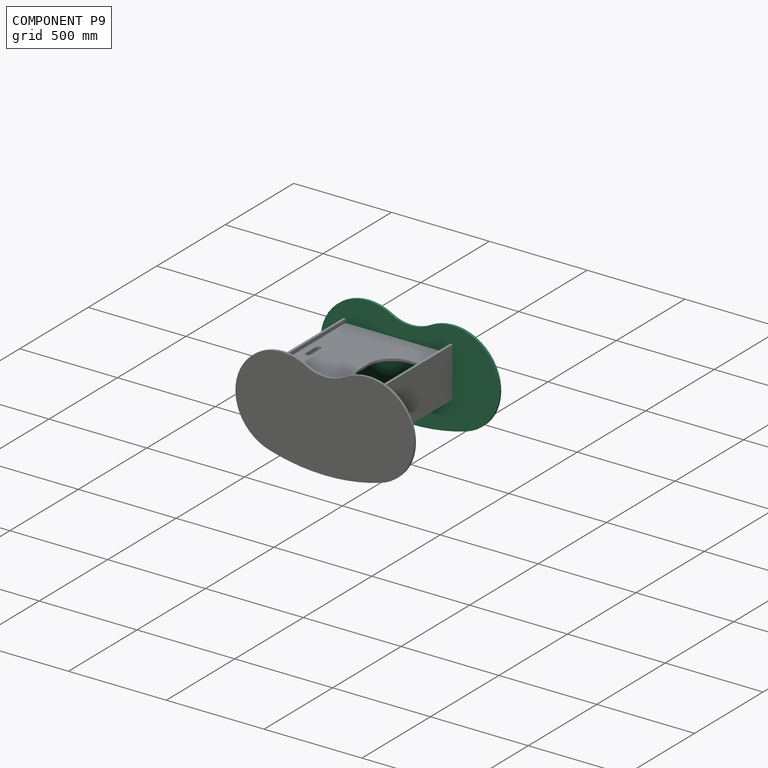
[diagram: component P9 — assembled]
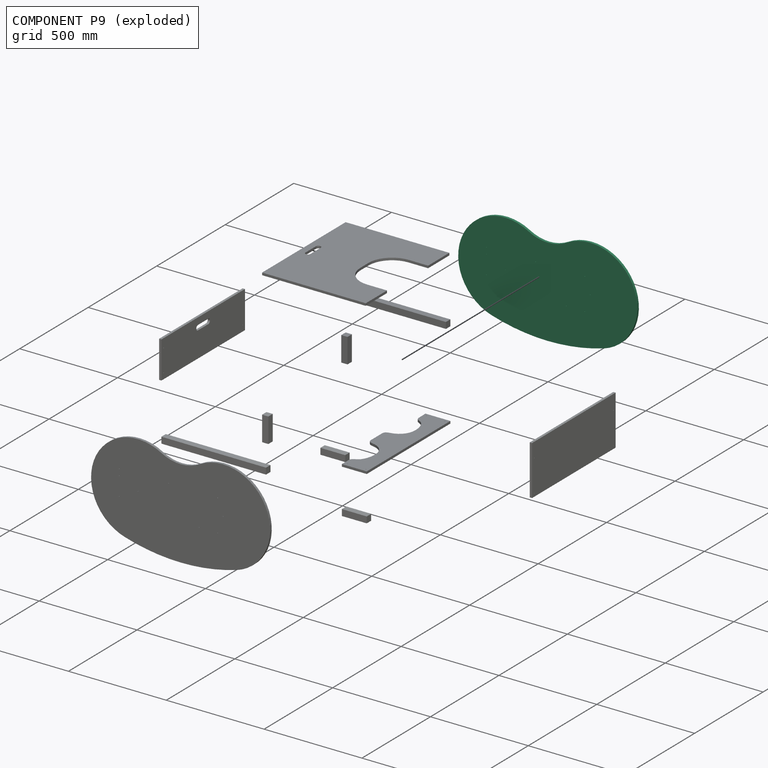
[diagram: component P9 — exploded]
COMPONENT P9 — same part as P3 (CADFS 00739946); its construction recipe is shown at P3.
Held by: FASTENED mate "Fastened 2" to P1; FASTENED mate "Fastened 1" to P4.
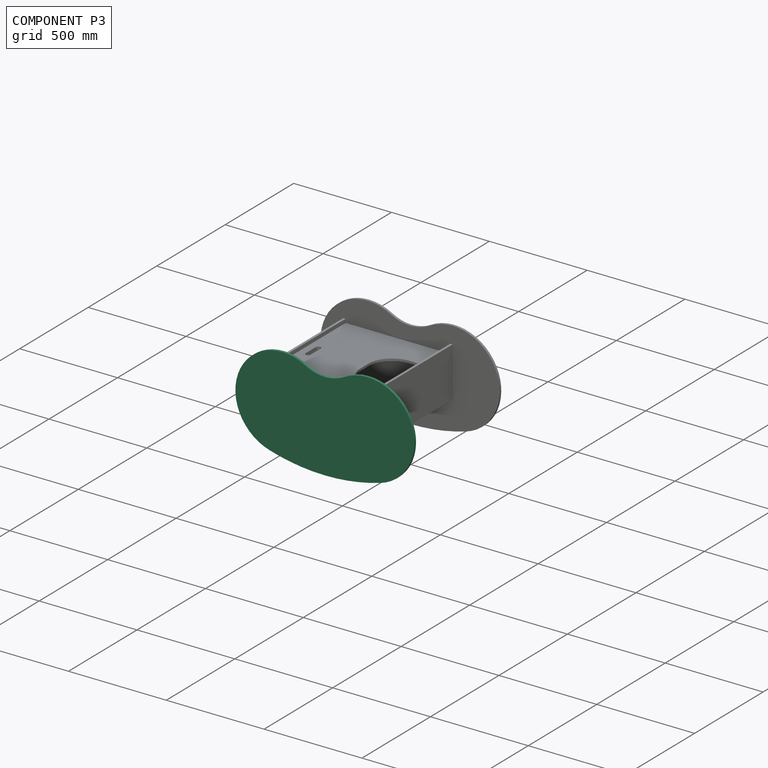
[diagram: component P3 — assembled]
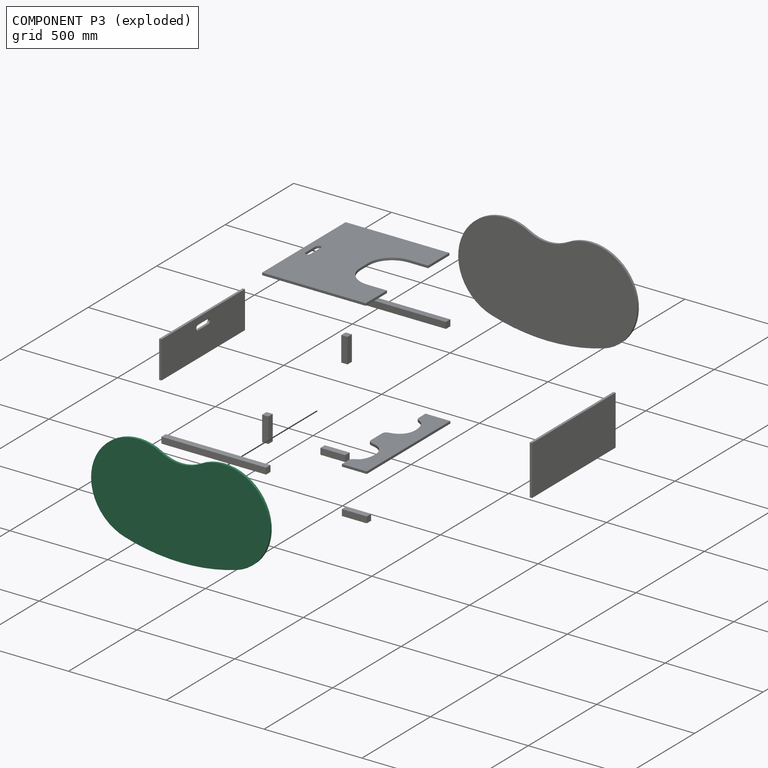
[diagram: component P3 — exploded]
COMPONENT P3 — recipe-attached (CADFS 00739946, mesh-verified: the recipe's output STEP matches this component's geometry to below the mesh-comparison resolution (tessellation chordal tolerance ~1.57 mm)).
Held by: FASTENED mate "Fastened 11" to P10.
Construction recipe (FeatureScript — the CAD program that rebuilds this solid; sketch coordinates are in the units given by the * unit suffixes, e.g. mm):

FeatureScript 1540;
import(path : "onshape/std/geometry.fs", version : "1540.0");
import(path : "onshape/std/common.fs", version : "1540.0");
const mm = millimeter;
const VERTEX = EntityType.VERTEX;
const EDGE = EntityType.EDGE;
const FACE = EntityType.FACE;
const BODY = EntityType.BODY;
function v(x, y){return vector(x, y);}
function OD(order){return orderDisambiguation(order);}
function OSD(set){return originalSetDisambiguation(set);}
function TD(topology){return topologyDisambiguation(topology);}
function TDD(query){return trueDependencyDisambiguation(query);}
function sQuery(a, b, c) {return sketchEntityQuery(a, b, c);}

annotation { "Feature Type Name" : "Feature", "Feature Type Description" : "" }
export const myFeature = defineFeature(function(context is Context, id is Id, definition is map)
    precondition{}
    {
        {
            var Q0;
            Q0=qCreatedBy(makeId("Front.planeOp"),FACE);
            var sketch = newSketch(context, id + "F0", { "sketchPlane" : qUnion([Q0])});
            skArc(sketch, "E0.MirrorCS", {"start": v(-286.18, -229.96) * mm, "mid": v(-438.21, 94.27) * mm, "end": v(-98.86, 208.63) * mm});
            skArc(sketch, "E1.MirrorCS", {"start": v(98.86, 208.63) * mm, "mid": v(438.21, 94.27) * mm, "end": v(286.18, -229.96) * mm});
            skArc(sketch, "E2.MirrorCS", {"start": v(286.18, -229.96) * mm, "mid": v(0, -271.79) * mm, "end": v(-286.18, -229.96) * mm});
            skArc(sketch, "E3.MirrorCS", {"start": v(98.86, 208.63) * mm, "mid": v(0, 182.48) * mm, "end": v(-98.86, 208.63) * mm});
            skCircle(sketch, "E4", {"center": v(189.5, -84) * mm, "radius": 1.5 * mm});
            skCircle(sketch, "E5", {"center": v(94.5, -84) * mm, "radius": 1.5 * mm});
            skLineSegment(sketch, "E6.bottom", {"start": v(205.5, -68) * mm, "end": v(78.5, -68) * mm, "construction": true});
            skLineSegment(sketch, "E6.top", {"start": v(205.5, -100) * mm, "end": v(78.5, -100) * mm, "construction": true});
            skLineSegment(sketch, "E6.left", {"start": v(205.5, -68) * mm, "end": v(205.5, -100) * mm, "construction": true});
            skLineSegment(sketch, "E6.right", {"start": v(78.5, -68) * mm, "end": v(78.5, -100) * mm, "construction": true});
            skLineSegment(sketch, "E7.bottom", {"start": v(205.5, -100) * mm, "end": v(217.5, -100) * mm, "construction": true});
            skLineSegment(sketch, "E7.top", {"start": v(205.5, 154) * mm, "end": v(217.5, 154) * mm, "construction": true});
            skLineSegment(sketch, "E7.left", {"start": v(205.5, -100) * mm, "end": v(205.5, 154) * mm, "construction": true});
            skLineSegment(sketch, "E7.right", {"start": v(217.5, -100) * mm, "end": v(217.5, 154) * mm, "construction": true});
            skLineSegment(sketch, "E8.bottom", {"start": v(205.5, 94) * mm, "end": v(-329.5, 94) * mm, "construction": true});
            skLineSegment(sketch, "E8.top", {"start": v(205.5, 62) * mm, "end": v(-329.5, 62) * mm, "construction": true});
            skLineSegment(sketch, "E8.left", {"start": v(205.5, 94) * mm, "end": v(205.5, 62) * mm, "construction": true});
            skLineSegment(sketch, "E8.right", {"start": v(-329.5, 94) * mm, "end": v(-329.5, 62) * mm, "construction": true});
            skLineSegment(sketch, "E9.bottom", {"start": v(-329.5, 62) * mm, "end": v(-297.5, 62) * mm, "construction": true});
            skLineSegment(sketch, "E9.top", {"start": v(-329.5, -65) * mm, "end": v(-297.5, -65) * mm, "construction": true});
            skLineSegment(sketch, "E9.left", {"start": v(-329.5, 62) * mm, "end": v(-329.5, -65) * mm, "construction": true});
            skLineSegment(sketch, "E9.right", {"start": v(-297.5, 62) * mm, "end": v(-297.5, -65) * mm, "construction": true});
            skCircle(sketch, "E10", {"center": v(189.5, 78) * mm, "radius": 1.5 * mm});
            skCircle(sketch, "E11", {"center": v(-313.5, 78) * mm, "radius": 1.5 * mm});
            skCircle(sketch, "E12", {"center": v(-313.5, 46) * mm, "radius": 1.5 * mm});
            skCircle(sketch, "E13", {"center": v(-313.5, -49) * mm, "radius": 1.5 * mm});
            skCircle(sketch, "E14", {"center": v(-62, 78) * mm, "radius": 1.5 * mm});
            skCircle(sketch, "E15", {"center": v(-217.5, 0) * mm, "radius": 1.5 * mm});
            skCircle(sketch, "E16", {"center": v(217.5, 0) * mm, "radius": 1.5 * mm});
            skSolve(sketch);
        }
        {
            var Q0;
            Q0 = qSketchRegion(id + "F0", true);
            extrude(context, id + "F1", {"entities" : qUnion([Q0]), "depth" : 12 * mm, "offsetDistance" : 25 * mm, "symmetric" : true});
        }
    });
PROVENANCE & LICENSES
Assembly (occurrences, transforms, mates, per-part STEP geometry): AutoMate dataset, Zenodo record 7776208, CC0.
Construction recipes: CADFS (HuggingFace VladPyatov/CADFS, CC-BY-4.0, layered over the ABC dataset), FeatureScript reconstruction programs keyed by ABC model id.
Join: ABC meta listings map ABC model id -> Onshape documentId; within a shared document, parts are matched by geometric signature (bounding-box dims + volume at 0.1% relative tolerance, exact B-rep face/solid counts).
Verification: 12 of this assembly's 12 components carry a recipe attachment, and every attachment is mesh-verified: the CADFS STEP and the AutoMate member STEP were compared as meshes in their shared local frame (symmetric sampled-point-to-mesh distance); worst across the 12 attachments: below the mesh-comparison resolution (tessellation chordal tolerance ~1.57 mm) on a 1048 mm part.
Renders: orthographic iso camera (az 35 / el 25); the floor grid conveys scale (grid pitch printed in each image; no ruler). In the exploded view each component is displaced by its stored offset vector: the offsets alone carry the explosion direction (mate normal/axis signs are not orientation cues and do not encode it), and separation distances are assigned per mate-chain, not proportionally to assembly-order depth.
